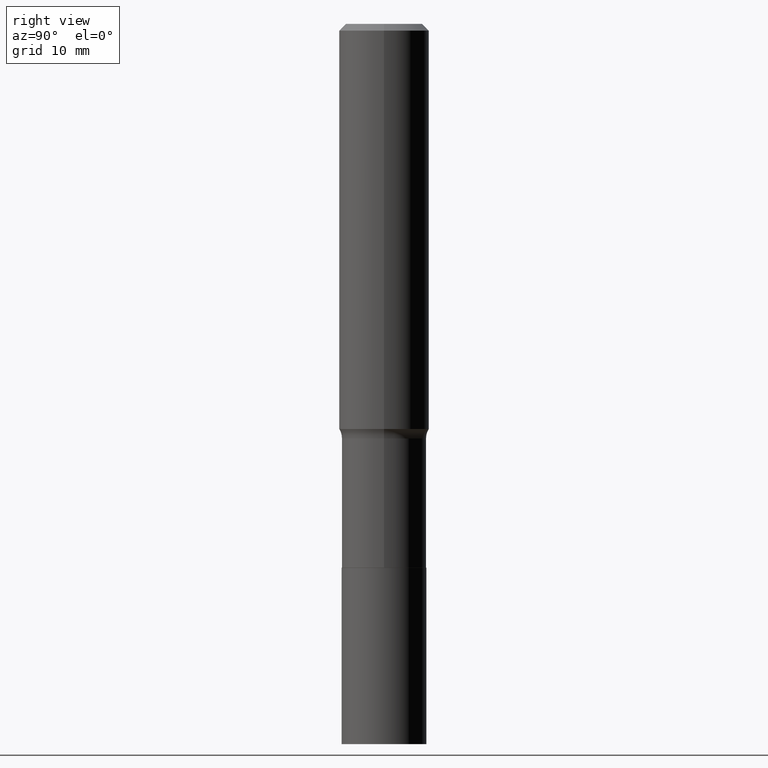
[diagram: clean part render]
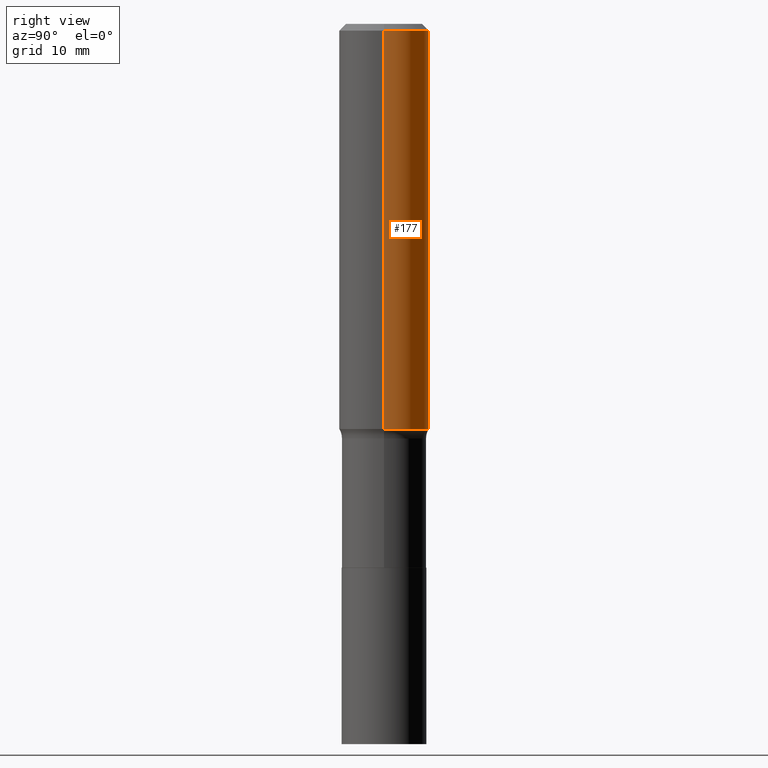
[diagram: same view with one face highlighted and labeled with its STEP entity id]
A machine part, right view. The second image highlights one B-rep face of the part: STEP entity #177.
In plain terms, the highlighted cylindrical surface (partial cylindrical patch) has radius 5 mm, axis along (-0, 0, 1).
Its self-contained STEP definition (entity closure, byte-faithful):
#2 = DIRECTION ( 'NONE',  ( -2.445468806185136877E-29, 3.491481338843145188E-15, 1.000000000000000000 ) ) ;
#11 = VERTEX_POINT ( 'NONE', #166 ) ;
#19 = EDGE_CURVE ( 'NONE', #11, #118, #278, .T. ) ;
#20 = VERTEX_POINT ( 'NONE', #396 ) ;
#40 = DIRECTION ( 'NONE',  ( 1.000000000000000000, -6.982962677686265922E-15, 0.000000000000000000 ) ) ;
#55 = ORIENTED_EDGE ( 'NONE', *, *, #19, .F. ) ;
#71 = AXIS2_PLACEMENT_3D ( 'NONE', #232, #265, #40 ) ;
#72 = VERTEX_POINT ( 'NONE', #415 ) ;
#95 = EDGE_CURVE ( 'NONE', #72, #20, #308, .T. ) ;
#100 = CYLINDRICAL_SURFACE ( 'NONE', #310, 0.1968500000000001082 ) ;
#115 = ORIENTED_EDGE ( 'NONE', *, *, #146, .T. ) ;
#118 = VERTEX_POINT ( 'NONE', #208 ) ;
#142 = AXIS2_PLACEMENT_3D ( 'NONE', #301, #386, #343 ) ;
#146 = EDGE_CURVE ( 'NONE', #11, #72, #289, .T. ) ;
#166 = CARTESIAN_POINT ( 'NONE',  ( 0.1968500000000002470, -7.558993630916840498E-15, -1.771281822134387118 ) ) ;
#177 = ADVANCED_FACE ( 'NONE', ( #282 ), #100, .T. ) ;
#182 = CIRCLE ( 'NONE', #71, 0.1968500000000000250 ) ;
#208 = CARTESIAN_POINT ( 'NONE',  ( 0.1968500000000000250, -1.477690918335233294E-15, -0.02952750000000019595 ) ) ;
#223 = VECTOR ( 'NONE', #2, 39.37007874015748143 ) ;
#232 = CARTESIAN_POINT ( 'NONE',  ( 7.220858017463209485E-31, -1.030947152326916609E-16, -0.02952750000000019595 ) ) ;
#265 = DIRECTION ( 'NONE',  ( -2.445468806185136597E-29, 3.491481338843145583E-15, 1.000000000000000000 ) ) ;
#278 = LINE ( 'NONE', #398, #368 ) ;
#282 = FACE_OUTER_BOUND ( 'NONE', #446, .T. ) ;
#289 = CIRCLE ( 'NONE', #142, 0.1968500000000002470 ) ;
#292 = EDGE_CURVE ( 'NONE', #118, #20, #182, .T. ) ;
#295 = ORIENTED_EDGE ( 'NONE', *, *, #292, .F. ) ;
#301 = CARTESIAN_POINT ( 'NONE',  ( 4.331614442992413389E-29, -6.184397427814296523E-15, -1.771281822134387118 ) ) ;
#308 = LINE ( 'NONE', #344, #223 ) ;
#310 = AXIS2_PLACEMENT_3D ( 'NONE', #323, #403, #315 ) ;
#315 = DIRECTION ( 'NONE',  ( 1.000000000000000000, -6.982962677686266711E-15, 4.876176775795935793E-29 ) ) ;
#323 = CARTESIAN_POINT ( 'NONE',  ( 0.000000000000000000, 0.000000000000000000, 0.000000000000000000 ) ) ;
#335 = ORIENTED_EDGE ( 'NONE', *, *, #95, .T. ) ;
#343 = DIRECTION ( 'NONE',  ( 1.000000000000000000, -6.982962677686269866E-15, 0.000000000000000000 ) ) ;
#344 = CARTESIAN_POINT ( 'NONE',  ( -0.1968500000000001082, 1.398703375343757985E-15, -9.682923725166787881E-30 ) ) ;
#368 = VECTOR ( 'NONE', #465, 39.37007874015748143 ) ;
#386 = DIRECTION ( 'NONE',  ( -2.445468806185136597E-29, 3.491481338843145583E-15, 1.000000000000000000 ) ) ;
#396 = CARTESIAN_POINT ( 'NONE',  ( -0.1968500000000000250, -1.745042696179735528E-15, -0.02952750000000019595 ) ) ;
#398 = CARTESIAN_POINT ( 'NONE',  ( 0.1968500000000001082, -1.374596203102542397E-15, 9.598753983154305062E-30 ) ) ;
#403 = DIRECTION ( 'NONE',  ( -2.445468806185136597E-29, 3.491481338843145583E-15, 1.000000000000000000 ) ) ;
#415 = CARTESIAN_POINT ( 'NONE',  ( -0.1968500000000002470, -4.785694052470537158E-15, -1.771281822134387118 ) ) ;
#446 = EDGE_LOOP ( 'NONE', ( #115, #335, #295, #55 ) ) ;
#465 = DIRECTION ( 'NONE',  ( -2.445468806185136877E-29, 3.491481338843145188E-15, 1.000000000000000000 ) ) ;